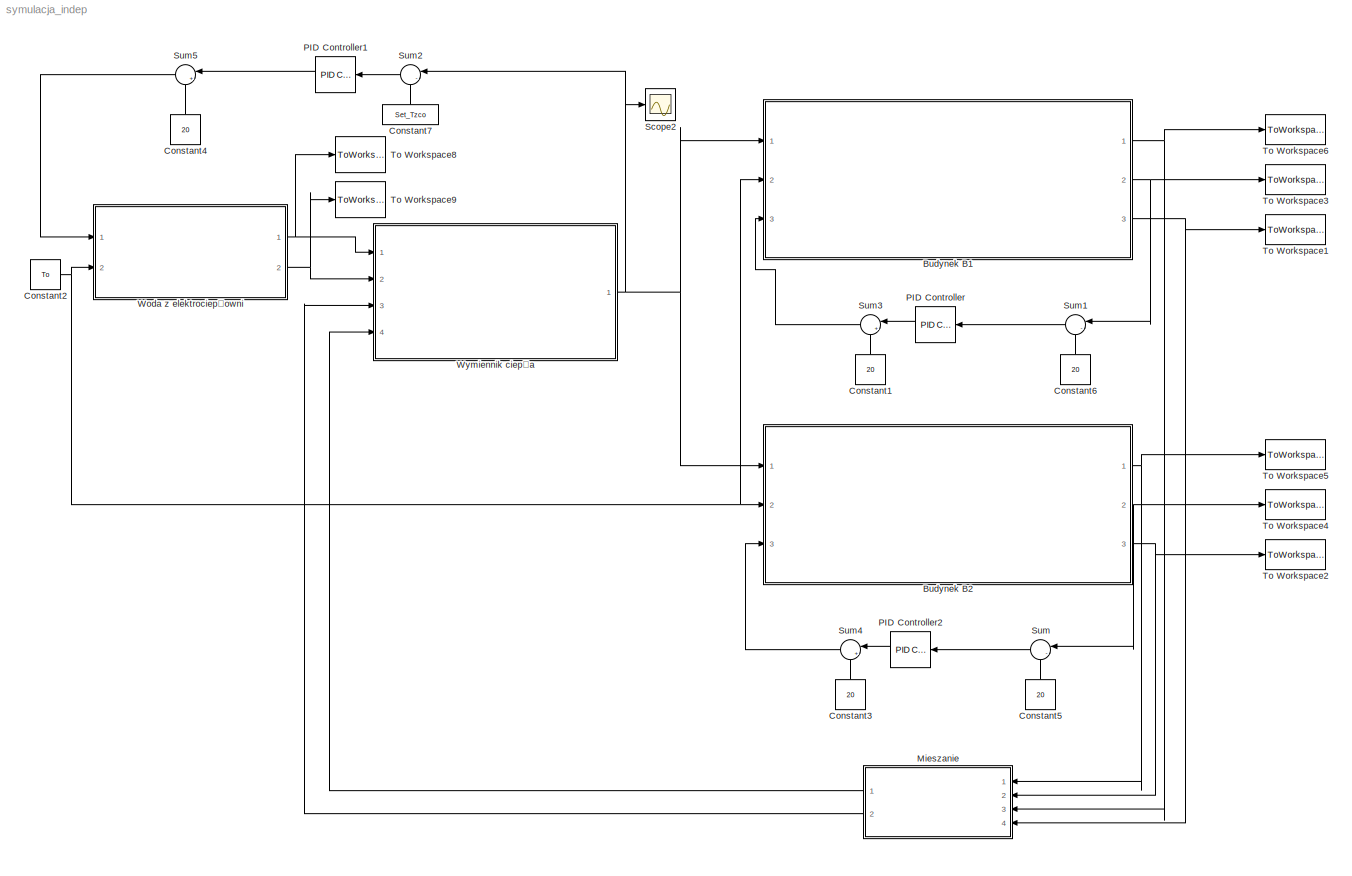
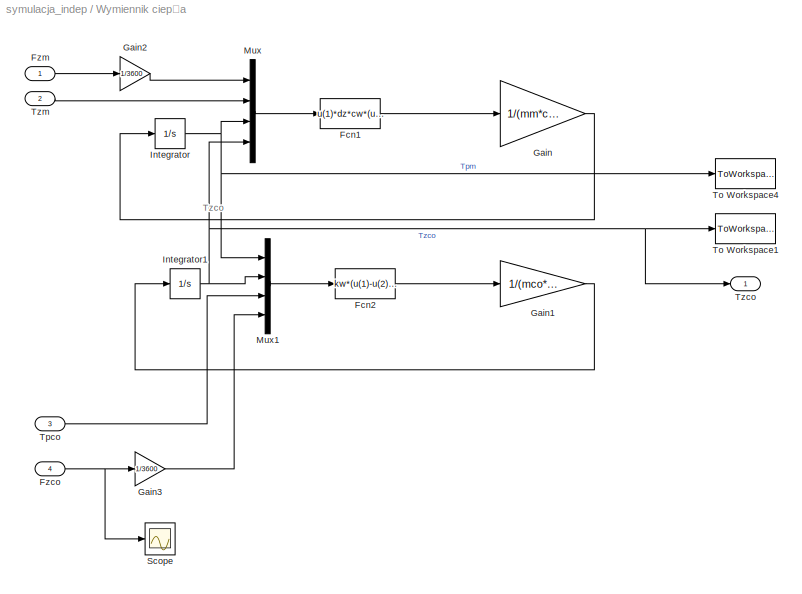
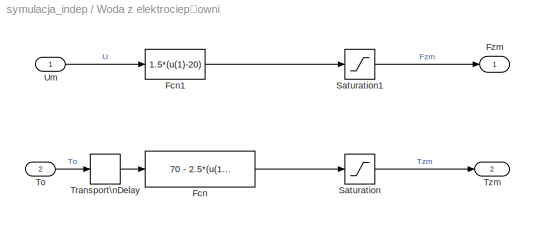
MODEL symulacja_indep
KIND model
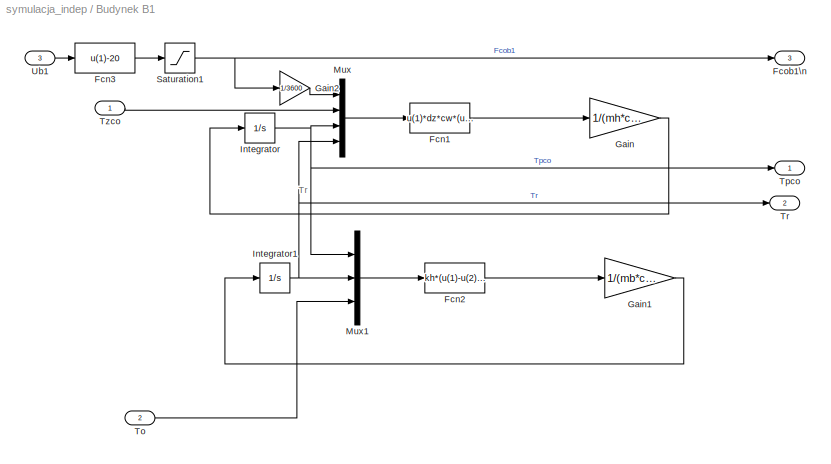
BLOCK [SubSystem] Budynek B1
  FunctionWithSeparateData = off
  MaskHideContents = off
  MinAlgLoopOccurrences = off
  Opaque = off
  Ports = [3, 3]
  PropExecContextOutsideSubsystem = off
  RTWSystemCode = Auto
  RequestExecContextInheritance = off
  SID = 30
  Variant = off
BLOCK [Fcn] Budynek B1/Fcn1
  Expr = u(1)*dz*cw*(u(2)-u(3))-kh*(u(3)-u(4))
  SID = 23
BLOCK [Fcn] Budynek B1/Fcn2
  Expr = kh*(u(1)-u(2)) - kext*(u(2)-u(3))
  SID = 25
BLOCK [Fcn] Budynek B1/Fcn3
  Expr = u(1)-20
  SID = 90
BLOCK [Outport] Budynek B1/Fcob1\n
  IconDisplay = Port number
  Port = 3
  SID = 186
BLOCK [Gain] Budynek B1/Gain
  Gain = 1/(mh*ch)
  OutDataTypeStr = Inherit: Inherit via internal rule
  ParamDataTypeStr = Inherit: Inherit via internal rule
  SID = 21
  SaturateOnIntegerOverflow = off
BLOCK [Gain] Budynek B1/Gain1
  Gain = 1/(mb*cb)
  OutDataTypeStr = Inherit: Inherit via internal rule
  ParamDataTypeStr = Inherit: Inherit via internal rule
  SID = 26
  SaturateOnIntegerOverflow = off
BLOCK [Gain] Budynek B1/Gain2
  Gain = 1/3600
  OutDataTypeStr = Inherit: Inherit via internal rule
  ParamDataTypeStr = Inherit: Inherit via internal rule
  SID = 253
  SaturateOnIntegerOverflow = off
BLOCK [Integrator] Budynek B1/Integrator
  InitialCondition = Tpco1_in
  Ports = [1, 1]
  SID = 19
BLOCK [Integrator] Budynek B1/Integrator1
  InitialCondition = Tr1_in
  Ports = [1, 1]
  SID = 27
BLOCK [Mux] Budynek B1/Mux
  DisplayOption = bar
  Ports = [4, 1]
  SID = 24
BLOCK [Mux] Budynek B1/Mux1
  DisplayOption = bar
  Inputs = 3
  Ports = [3, 1]
  SID = 28
BLOCK [Saturate] Budynek B1/Saturation1
  InputPortMap = u0
  LowerLimit = 0
  Ports = [1, 1]
  SID = 91
  UpperLimit = 40
BLOCK [Inport] Budynek B1/To
  IconDisplay = Port number
  Port = 2
  SID = 33
BLOCK [Outport] Budynek B1/Tpco
  IconDisplay = Port number
  SID = 34
BLOCK [Outport] Budynek B1/Tr
  IconDisplay = Port number
  Port = 2
  SID = 35
BLOCK [Inport] Budynek B1/Tzco
  IconDisplay = Port number
  SID = 32
BLOCK [Inport] Budynek B1/Ub1
  IconDisplay = Port number
  Port = 3
  SID = 94
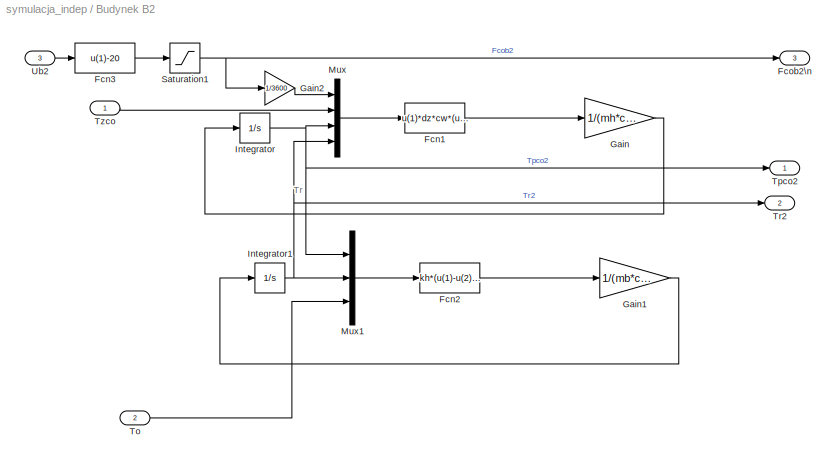
BLOCK [SubSystem] Budynek B2
  FunctionWithSeparateData = off
  MaskHideContents = off
  MinAlgLoopOccurrences = off
  Opaque = off
  Ports = [3, 3]
  PropExecContextOutsideSubsystem = off
  RTWSystemCode = Auto
  RequestExecContextInheritance = off
  SID = 58
  Variant = off
BLOCK [Fcn] Budynek B2/Fcn1
  Expr = u(1)*dz*cw*(u(2)-u(3))-kh*(u(3)-u(4))
  SID = 154
BLOCK [Fcn] Budynek B2/Fcn2
  Expr = kh*(u(1)-u(2)) - kext*(u(2)-u(3))
  SID = 155
BLOCK [Fcn] Budynek B2/Fcn3
  Expr = u(1)-20
  SID = 156
BLOCK [Outport] Budynek B2/Fcob2\n
  IconDisplay = Port number
  Port = 3
  SID = 187
BLOCK [Gain] Budynek B2/Gain
  Gain = 1/(mh*ch)
  OutDataTypeStr = Inherit: Inherit via internal rule
  ParamDataTypeStr = Inherit: Inherit via internal rule
  SID = 157
  SaturateOnIntegerOverflow = off
BLOCK [Gain] Budynek B2/Gain1
  Gain = 1/(mb*cb)
  OutDataTypeStr = Inherit: Inherit via internal rule
  ParamDataTypeStr = Inherit: Inherit via internal rule
  SID = 158
  SaturateOnIntegerOverflow = off
BLOCK [Gain] Budynek B2/Gain2
  Gain = 1/3600
  OutDataTypeStr = Inherit: Inherit via internal rule
  ParamDataTypeStr = Inherit: Inherit via internal rule
  SID = 254
  SaturateOnIntegerOverflow = off
BLOCK [Integrator] Budynek B2/Integrator
  InitialCondition = Tpco2_in
  Ports = [1, 1]
  SID = 159
BLOCK [Integrator] Budynek B2/Integrator1
  InitialCondition = Tr2_in
  Ports = [1, 1]
  SID = 160
BLOCK [Mux] Budynek B2/Mux
  DisplayOption = bar
  Ports = [4, 1]
  SID = 161
BLOCK [Mux] Budynek B2/Mux1
  DisplayOption = bar
  Inputs = 3
  Ports = [3, 1]
  SID = 162
BLOCK [Saturate] Budynek B2/Saturation1
  InputPortMap = u0
  LowerLimit = 0
  Ports = [1, 1]
  SID = 163
  UpperLimit = 40
BLOCK [Inport] Budynek B2/To
  IconDisplay = Port number
  Port = 2
  SID = 152
BLOCK [Outport] Budynek B2/Tpco2
  IconDisplay = Port number
  SID = 164
BLOCK [Outport] Budynek B2/Tr2
  IconDisplay = Port number
  Port = 2
  SID = 165
BLOCK [Inport] Budynek B2/Tzco
  IconDisplay = Port number
  SID = 151
BLOCK [Inport] Budynek B2/Ub2
  IconDisplay = Port number
  Port = 3
  SID = 153
BLOCK [Constant] Constant1
  SID = 260
  Value = 20
BLOCK [Constant] Constant2
  SID = 204
  Value = To
BLOCK [Constant] Constant3
  SID = 262
  Value = 20
BLOCK [Constant] Constant4
  SID = 264
  Value = 20
BLOCK [Constant] Constant5
  SID = 218
  Value = 20
BLOCK [Constant] Constant6
  SID = 219
  Value = 20
BLOCK [Constant] Constant7
  SID = 221
  Value = Set_Tzco
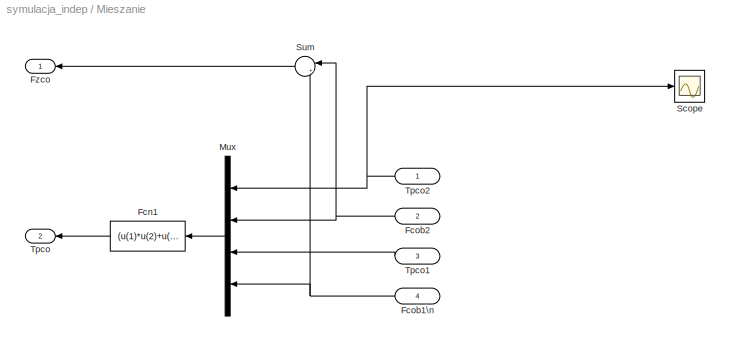
BLOCK [SubSystem] Mieszanie
  FunctionWithSeparateData = off
  MaskHideContents = off
  MinAlgLoopOccurrences = off
  Opaque = off
  Ports = [4, 2]
  PropExecContextOutsideSubsystem = off
  RTWSystemCode = Auto
  RequestExecContextInheritance = off
  SID = 192
  Variant = off
BLOCK [Fcn] Mieszanie/Fcn1
  Expr = (u(1)*u(2)+u(3)*u(4))/(u(1)+u(3))
  SID = 188
BLOCK [Inport] Mieszanie/Fcob1\n
  IconDisplay = Port number
  Port = 4
  SID = 200
BLOCK [Inport] Mieszanie/Fcob2
  IconDisplay = Port number
  Port = 2
  SID = 198
BLOCK [Outport] Mieszanie/Fzco
  IconDisplay = Port number
  SID = 208
BLOCK [Mux] Mieszanie/Mux
  DisplayOption = bar
  Ports = [4, 1]
  SID = 189
BLOCK [Scope] Mieszanie/Scope
  DataFormat = StructureWithTime
  Decimation = 1
  Grid = on
  LimitDataPoints = off
  MaxDataPoints = 5000
  Ports = [1]
  SID = 223
  SampleInput = off
  SampleTime = -1
  SaveName = ScopeData1
  SaveToWorkspace = off
  ShowLegends = off
  TickLabels = OneTimeTick
  TimeRange = auto
  YMax = 50.00000
  YMin = 30.00000
  ZoomMode = on
BLOCK [Sum] Mieszanie/Sum
  IconShape = round
  InputSameDT = off
  Inputs = |++
  OutDataTypeStr = Inherit: Inherit via internal rule
  Ports = [2, 1]
  SID = 207
  SaturateOnIntegerOverflow = off
BLOCK [Outport] Mieszanie/Tpco
  IconDisplay = Port number
  Port = 2
  SID = 197
BLOCK [Inport] Mieszanie/Tpco1
  IconDisplay = Port number
  Port = 3
  SID = 199
BLOCK [Inport] Mieszanie/Tpco2
  IconDisplay = Port number
  SID = 193
BLOCK [Reference] PID Controller  REF=simulink/Continuous/PID Controller
  AntiWindupMode = none
  Controller = PI
  ControllerParametersSource = internal
  D = 0
  DGainOutDataTypeStr = Inherit: Inherit via internal rule
  DOutDataTypeStr = Inherit: Inherit via internal rule
  DOutMax = []
  DOutMin = []
  DParamDataTypeStr = Inherit: Inherit via internal rule
  DParamMax = []
  DParamMin = []
  DProdOutDataTypeStr = Inherit: Inherit via internal rule
  DifferentiatorICPrevScaledInput = 0
  DifferentiatorOutDataTypeStr = Inherit: Inherit via internal rule
  DifferentiatorOutMax = []
  DifferentiatorOutMin = []
  ExternalReset = none
  FilterContinuousStateAttributes = ''
  FilterMethod = Forward Euler
  FilterOutDataTypeStr = Inherit: Inherit via internal rule
  FilterOutMax = []
  FilterOutMin = []
  FilterRTWStateStorageClass = Auto
  FilterStateMustResolveToSignalObject = off
  Form = Parallel
  I = 0.003
  IGainOutDataTypeStr = Inherit: Inherit via internal rule
  IOutDataTypeStr = Inherit: Inherit via internal rule
  IOutMax = []
  IOutMin = []
  IParamDataTypeStr = Inherit: Inherit via internal rule
  IParamMax = []
  IParamMin = []
  IProdOutDataTypeStr = Inherit: Inherit via internal rule
  IgnoreLimit = off
  InitialConditionForFilter = 0
  InitialConditionForIntegrator = 0
  InitialConditionSource = internal
  IntegratorContinuousStateAttributes = ''
  IntegratorMethod = Forward Euler
  IntegratorOutDataTypeStr = Inherit: Inherit via internal rule
  IntegratorOutMax = []
  IntegratorOutMin = []
  IntegratorRTWStateStorageClass = Auto
  IntegratorStateMustResolveToSignalObject = off
  Kb = 1
  KbOutDataTypeStr = Inherit: Inherit via internal rule
  KbOutMax = []
  KbOutMin = []
  KbParamDataTypeStr = Inherit: Inherit via internal rule
  KbParamMax = []
  KbParamMin = []
  Kt = 1
  KtOutDataTypeStr = Inherit: Inherit via internal rule
  KtOutMax = []
  KtOutMin = []
  KtParamDataTypeStr = Inherit: Inherit via internal rule
  KtParamMax = []
  KtParamMin = []
  LimitOutput = off
  LinearizeAsGain = off
  LockScale = off
  LowerSaturationLimit = -inf
  N = 1.51558352628904
  NGainOutDataTypeStr = Inherit: Inherit via internal rule
  NOutDataTypeStr = Inherit: Inherit via internal rule
  NOutMax = []
  NOutMin = []
  NParamDataTypeStr = Inherit: Inherit via internal rule
  NParamMax = []
  NParamMin = []
  NProdOutDataTypeStr = Inherit: Inherit via internal rule
  P = 5
  PGainOutDataTypeStr = Inherit: Inherit via internal rule
  POutDataTypeStr = Inherit: Inherit via internal rule
  POutMax = []
  POutMin = []
  PParamDataTypeStr = Inherit: Inherit via internal rule
  PParamMax = []
  PParamMin = []
  PProdOutDataTypeStr = Inherit: Inherit via internal rule
  Ports = [1, 1]
  RndMeth = Floor
  SID = 244
  SampleTime = -1
  SaturateOnIntegerOverflow = off
  SaturationOutDataTypeStr = Inherit: Same as input
  SaturationOutMax = []
  SaturationOutMin = []
  SourceBlock = simulink/Continuous/PID Controller
  SourceType = PID 1dof
  SumAccumDataTypeStr = Inherit: Inherit via internal rule
  SumDAccumDataTypeStr = Inherit: Inherit via internal rule
  SumDOutDataTypeStr = Inherit: Inherit via internal rule
  SumDOutMax = []
  SumDOutMin = []
  SumI1AccumDataTypeStr = Inherit: Inherit via internal rule
  SumI1OutDataTypeStr = Inherit: Inherit via internal rule
  SumI1OutMax = []
  SumI1OutMin = []
  SumI2AccumDataTypeStr = Inherit: Inherit via internal rule
  SumI2OutDataTypeStr = Inherit: Inherit via internal rule
  SumI2OutMax = []
  SumI2OutMin = []
  SumI3AccumDataTypeStr = Inherit: Inherit via internal rule
  SumI3OutDataTypeStr = Inherit: Inherit via internal rule
  SumI3OutMax = []
  SumI3OutMin = []
  SumOutDataTypeStr = Inherit: Inherit via internal rule
  SumOutMax = []
  SumOutMin = []
  TimeDomain = Continuous-time
  TrackingMode = off
  UpperSaturationLimit = inf
  UseFilter = on
  ZeroCross = on
BLOCK [Reference] PID Controller1  REF=simulink/Continuous/PID Controller
  AntiWindupMode = none
  Controller = PI
  ControllerParametersSource = internal
  D = 0
  DGainOutDataTypeStr = Inherit: Inherit via internal rule
  DOutDataTypeStr = Inherit: Inherit via internal rule
  DOutMax = []
  DOutMin = []
  DParamDataTypeStr = Inherit: Inherit via internal rule
  DParamMax = []
  DParamMin = []
  DProdOutDataTypeStr = Inherit: Inherit via internal rule
  DifferentiatorICPrevScaledInput = 0
  DifferentiatorOutDataTypeStr = Inherit: Inherit via internal rule
  DifferentiatorOutMax = []
  DifferentiatorOutMin = []
  ExternalReset = none
  FilterContinuousStateAttributes = ''
  FilterMethod = Forward Euler
  FilterOutDataTypeStr = Inherit: Inherit via internal rule
  FilterOutMax = []
  FilterOutMin = []
  FilterRTWStateStorageClass = Auto
  FilterStateMustResolveToSignalObject = off
  Form = Parallel
  I = 0.04
  IGainOutDataTypeStr = Inherit: Inherit via internal rule
  IOutDataTypeStr = Inherit: Inherit via internal rule
  IOutMax = []
  IOutMin = []
  IParamDataTypeStr = Inherit: Inherit via internal rule
  IParamMax = []
  IParamMin = []
  IProdOutDataTypeStr = Inherit: Inherit via internal rule
  IgnoreLimit = off
  InitialConditionForFilter = 0
  InitialConditionForIntegrator = 0
  InitialConditionSource = internal
  IntegratorContinuousStateAttributes = ''
  IntegratorMethod = Forward Euler
  IntegratorOutDataTypeStr = Inherit: Inherit via internal rule
  IntegratorOutMax = []
  IntegratorOutMin = []
  IntegratorRTWStateStorageClass = Auto
  IntegratorStateMustResolveToSignalObject = off
  Kb = 1
  KbOutDataTypeStr = Inherit: Inherit via internal rule
  KbOutMax = []
  KbOutMin = []
  KbParamDataTypeStr = Inherit: Inherit via internal rule
  KbParamMax = []
  KbParamMin = []
  Kt = 1
  KtOutDataTypeStr = Inherit: Inherit via internal rule
  KtOutMax = []
  KtOutMin = []
  KtParamDataTypeStr = Inherit: Inherit via internal rule
  KtParamMax = []
  KtParamMin = []
  LimitOutput = off
  LinearizeAsGain = off
  LockScale = off
  LowerSaturationLimit = -inf
  N = 100
  NGainOutDataTypeStr = Inherit: Inherit via internal rule
  NOutDataTypeStr = Inherit: Inherit via internal rule
  NOutMax = []
  NOutMin = []
  NParamDataTypeStr = Inherit: Inherit via internal rule
  NParamMax = []
  NParamMin = []
  NProdOutDataTypeStr = Inherit: Inherit via internal rule
  P = 5.5
  PGainOutDataTypeStr = Inherit: Inherit via internal rule
  POutDataTypeStr = Inherit: Inherit via internal rule
  POutMax = []
  POutMin = []
  PParamDataTypeStr = Inherit: Inherit via internal rule
  PParamMax = []
  PParamMin = []
  PProdOutDataTypeStr = Inherit: Inherit via internal rule
  Ports = [1, 1]
  RndMeth = Floor
  SID = 247
  SampleTime = -1
  SaturateOnIntegerOverflow = off
  SaturationOutDataTypeStr = Inherit: Same as input
  SaturationOutMax = []
  SaturationOutMin = []
  SourceBlock = simulink/Continuous/PID Controller
  SourceType = PID 1dof
  SumAccumDataTypeStr = Inherit: Inherit via internal rule
  SumDAccumDataTypeStr = Inherit: Inherit via internal rule
  SumDOutDataTypeStr = Inherit: Inherit via internal rule
  SumDOutMax = []
  SumDOutMin = []
  SumI1AccumDataTypeStr = Inherit: Inherit via internal rule
  SumI1OutDataTypeStr = Inherit: Inherit via internal rule
  SumI1OutMax = []
  SumI1OutMin = []
  SumI2AccumDataTypeStr = Inherit: Inherit via internal rule
  SumI2OutDataTypeStr = Inherit: Inherit via internal rule
  SumI2OutMax = []
  SumI2OutMin = []
  SumI3AccumDataTypeStr = Inherit: Inherit via internal rule
  SumI3OutDataTypeStr = Inherit: Inherit via internal rule
  SumI3OutMax = []
  SumI3OutMin = []
  SumOutDataTypeStr = Inherit: Inherit via internal rule
  SumOutMax = []
  SumOutMin = []
  TimeDomain = Continuous-time
  TrackingMode = off
  UpperSaturationLimit = inf
  UseFilter = on
  ZeroCross = on
BLOCK [Reference] PID Controller2  REF=simulink/Continuous/PID Controller
  AntiWindupMode = none
  Controller = PI
  ControllerParametersSource = internal
  D = 4.73526330214478e+15
  DGainOutDataTypeStr = Inherit: Inherit via internal rule
  DOutDataTypeStr = Inherit: Inherit via internal rule
  DOutMax = []
  DOutMin = []
  DParamDataTypeStr = Inherit: Inherit via internal rule
  DParamMax = []
  DParamMin = []
  DProdOutDataTypeStr = Inherit: Inherit via internal rule
  DifferentiatorICPrevScaledInput = 0
  DifferentiatorOutDataTypeStr = Inherit: Inherit via internal rule
  DifferentiatorOutMax = []
  DifferentiatorOutMin = []
  ExternalReset = none
  FilterContinuousStateAttributes = ''
  FilterMethod = Forward Euler
  FilterOutDataTypeStr = Inherit: Inherit via internal rule
  FilterOutMax = []
  FilterOutMin = []
  FilterRTWStateStorageClass = Auto
  FilterStateMustResolveToSignalObject = off
  Form = Parallel
  I = 0.003
  IGainOutDataTypeStr = Inherit: Inherit via internal rule
  IOutDataTypeStr = Inherit: Inherit via internal rule
  IOutMax = []
  IOutMin = []
  IParamDataTypeStr = Inherit: Inherit via internal rule
  IParamMax = []
  IParamMin = []
  IProdOutDataTypeStr = Inherit: Inherit via internal rule
  IgnoreLimit = off
  InitialConditionForFilter = 0
  InitialConditionForIntegrator = 0
  InitialConditionSource = internal
  IntegratorContinuousStateAttributes = ''
  IntegratorMethod = Forward Euler
  IntegratorOutDataTypeStr = Inherit: Inherit via internal rule
  IntegratorOutMax = []
  IntegratorOutMin = []
  IntegratorRTWStateStorageClass = Auto
  IntegratorStateMustResolveToSignalObject = off
  Kb = 1
  KbOutDataTypeStr = Inherit: Inherit via internal rule
  KbOutMax = []
  KbOutMin = []
  KbParamDataTypeStr = Inherit: Inherit via internal rule
  KbParamMax = []
  KbParamMin = []
  Kt = 1
  KtOutDataTypeStr = Inherit: Inherit via internal rule
  KtOutMax = []
  KtOutMin = []
  KtParamDataTypeStr = Inherit: Inherit via internal rule
  KtParamMax = []
  KtParamMin = []
  LimitOutput = off
  LinearizeAsGain = off
  LockScale = off
  LowerSaturationLimit = -inf
  N = 0.256886063565223
  NGainOutDataTypeStr = Inherit: Inherit via internal rule
  NOutDataTypeStr = Inherit: Inherit via internal rule
  NOutMax = []
  NOutMin = []
  NParamDataTypeStr = Inherit: Inherit via internal rule
  NParamMax = []
  NParamMin = []
  NProdOutDataTypeStr = Inherit: Inherit via internal rule
  P = 5
  PGainOutDataTypeStr = Inherit: Inherit via internal rule
  POutDataTypeStr = Inherit: Inherit via internal rule
  POutMax = []
  POutMin = []
  PParamDataTypeStr = Inherit: Inherit via internal rule
  PParamMax = []
  PParamMin = []
  PProdOutDataTypeStr = Inherit: Inherit via internal rule
  Ports = [1, 1]
  RndMeth = Floor
  SID = 249
  SampleTime = -1
  SaturateOnIntegerOverflow = off
  SaturationOutDataTypeStr = Inherit: Same as input
  SaturationOutMax = []
  SaturationOutMin = []
  SourceBlock = simulink/Continuous/PID Controller
  SourceType = PID 1dof
  SumAccumDataTypeStr = Inherit: Inherit via internal rule
  SumDAccumDataTypeStr = Inherit: Inherit via internal rule
  SumDOutDataTypeStr = Inherit: Inherit via internal rule
  SumDOutMax = []
  SumDOutMin = []
  SumI1AccumDataTypeStr = Inherit: Inherit via internal rule
  SumI1OutDataTypeStr = Inherit: Inherit via internal rule
  SumI1OutMax = []
  SumI1OutMin = []
  SumI2AccumDataTypeStr = Inherit: Inherit via internal rule
  SumI2OutDataTypeStr = Inherit: Inherit via internal rule
  SumI2OutMax = []
  SumI2OutMin = []
  SumI3AccumDataTypeStr = Inherit: Inherit via internal rule
  SumI3OutDataTypeStr = Inherit: Inherit via internal rule
  SumI3OutMax = []
  SumI3OutMin = []
  SumOutDataTypeStr = Inherit: Inherit via internal rule
  SumOutMax = []
  SumOutMin = []
  TimeDomain = Continuous-time
  TrackingMode = off
  UpperSaturationLimit = inf
  UseFilter = on
  ZeroCross = on
BLOCK [Scope] Scope2
  DataFormat = StructureWithTime
  Decimation = 1
  Grid = on
  LimitDataPoints = off
  MaxDataPoints = 5000
  Ports = [1]
  SID = 279
  SampleInput = off
  SampleTime = -1
  SaveName = ScopeData4
  SaveToWorkspace = off
  ShowLegends = off
  TickLabels = OneTimeTick
  TimeRange = auto
  YMax = 89.4066
  YMin = -4.37851
  ZoomMode = on
BLOCK [Sum] Sum
  IconShape = round
  InputSameDT = off
  Inputs = |-+
  OutDataTypeStr = Inherit: Inherit via internal rule
  Ports = [2, 1]
  SID = 217
  SaturateOnIntegerOverflow = off
BLOCK [Sum] Sum1
  IconShape = round
  InputSameDT = off
  Inputs = |-+
  OutDataTypeStr = Inherit: Inherit via internal rule
  Ports = [2, 1]
  SID = 220
  SaturateOnIntegerOverflow = off
BLOCK [Sum] Sum2
  IconShape = round
  InputSameDT = off
  Inputs = |-+
  OutDataTypeStr = Inherit: Inherit via internal rule
  Ports = [2, 1]
  SID = 222
  SaturateOnIntegerOverflow = off
BLOCK [Sum] Sum3
  IconShape = round
  InputSameDT = off
  Inputs = |++
  OutDataTypeStr = Inherit: Inherit via internal rule
  Ports = [2, 1]
  SID = 261
  SaturateOnIntegerOverflow = off
BLOCK [Sum] Sum4
  IconShape = round
  InputSameDT = off
  Inputs = |++
  OutDataTypeStr = Inherit: Inherit via internal rule
  Ports = [2, 1]
  SID = 263
  SaturateOnIntegerOverflow = off
BLOCK [Sum] Sum5
  IconShape = round
  InputSameDT = off
  Inputs = |++
  OutDataTypeStr = Inherit: Inherit via internal rule
  Ports = [2, 1]
  SID = 265
  SaturateOnIntegerOverflow = off
BLOCK [ToWorkspace] To Workspace1
  FixptAsFi = on
  MaxDataPoints = inf
  Ports = [1]
  SID = 269
  SampleTime = -1
  VariableName = Fcob1
BLOCK [ToWorkspace] To Workspace2
  FixptAsFi = on
  MaxDataPoints = inf
  Ports = [1]
  SID = 270
  SampleTime = -1
  VariableName = Fcob2
BLOCK [ToWorkspace] To Workspace3
  FixptAsFi = on
  MaxDataPoints = inf
  Ports = [1]
  SID = 143
  SampleTime = -1
  VariableName = Tr1
BLOCK [ToWorkspace] To Workspace4
  FixptAsFi = on
  MaxDataPoints = inf
  Ports = [1]
  SID = 144
  SampleTime = -1
  VariableName = Tr2
BLOCK [ToWorkspace] To Workspace5
  FixptAsFi = on
  MaxDataPoints = inf
  Ports = [1]
  SID = 145
  SampleTime = -1
  VariableName = Tpco2
BLOCK [ToWorkspace] To Workspace6
  FixptAsFi = on
  MaxDataPoints = inf
  Ports = [1]
  SID = 146
  SampleTime = -1
  VariableName = Tpco1
BLOCK [ToWorkspace] To Workspace8
  FixptAsFi = on
  MaxDataPoints = inf
  Ports = [1]
  SID = 272
  SampleTime = -1
  VariableName = Fzm
BLOCK [ToWorkspace] To Workspace9
  FixptAsFi = on
  MaxDataPoints = inf
  Ports = [1]
  SID = 273
  SampleTime = -1
  VariableName = Tzm
BLOCK [SubSystem] Woda z elektrociep³owni
  FunctionWithSeparateData = off
  MaskHideContents = off
  MinAlgLoopOccurrences = off
  Opaque = off
  Ports = [2, 2]
  PropExecContextOutsideSubsystem = off
  RTWSystemCode = Auto
  RequestExecContextInheritance = off
  SID = 9
  Variant = off
BLOCK [Fcn] Woda z elektrociep³owni/Fcn
  Expr = 70 - 2.5*(u(1) - 6)
  SID = 2
BLOCK [Fcn] Woda z elektrociep³owni/Fcn1
  Expr = 1.5*(u(1)-20)
  SID = 3
BLOCK [Outport] Woda z elektrociep³owni/Fzm
  IconDisplay = Port number
  SID = 12
BLOCK [Saturate] Woda z elektrociep³owni/Saturation
  InputPortMap = u0
  LowerLimit = 70
  Ports = [1, 1]
  SID = 4
  UpperLimit = 135
BLOCK [Saturate] Woda z elektrociep³owni/Saturation1
  InputPortMap = u0
  LowerLimit = 0
  Ports = [1, 1]
  SID = 5
  UpperLimit = 80
BLOCK [Inport] Woda z elektrociep³owni/To
  IconDisplay = Port number
  Port = 2
  SID = 11
BLOCK [TransportDelay] Woda z elektrociep³owni/Transport\nDelay
  DelayTime = 8
  InitialOutput = To
  Ports = [1, 1]
  SID = 18
BLOCK [Outport] Woda z elektrociep³owni/Tzm
  IconDisplay = Port number
  Port = 2
  SID = 13
BLOCK [Inport] Woda z elektrociep³owni/Um
  IconDisplay = Port number
  SID = 10
BLOCK [SubSystem] Wymiennik ciep³a
  FunctionWithSeparateData = off
  MaskHideContents = off
  MinAlgLoopOccurrences = off
  Opaque = off
  Ports = [4, 1]
  PropExecContextOutsideSubsystem = off
  RTWSystemCode = Auto
  RequestExecContextInheritance = off
  SID = 177
  Variant = off
BLOCK [Fcn] Wymiennik ciep³a/Fcn1
  Expr = u(1)*dz*cw*(u(2)-u(3))-kw*(u(3)-u(4))
  SID = 167
BLOCK [Fcn] Wymiennik ciep³a/Fcn2
  Expr = kw*(u(1)-u(2))-(u(4)*dz*cw*(u(2)-u(3)))
  SID = 168
BLOCK [Inport] Wymiennik ciep³a/Fzco
  IconDisplay = Port number
  Port = 4
  SID = 201
BLOCK [Inport] Wymiennik ciep³a/Fzm
  IconDisplay = Port number
  SID = 185
BLOCK [Gain] Wymiennik ciep³a/Gain
  Gain = 1/(mm*cwym)
  OutDataTypeStr = Inherit: Inherit via internal rule
  ParamDataTypeStr = Inherit: Inherit via internal rule
  SID = 169
  SaturateOnIntegerOverflow = off
BLOCK [Gain] Wymiennik ciep³a/Gain1
  Gain = 1/(mco*cwym)
  OutDataTypeStr = Inherit: Inherit via internal rule
  ParamDataTypeStr = Inherit: Inherit via internal rule
  SID = 170
  SaturateOnIntegerOverflow = off
BLOCK [Gain] Wymiennik ciep³a/Gain2
  Gain = 1/3600
  OutDataTypeStr = Inherit: Inherit via internal rule
  ParamDataTypeStr = Inherit: Inherit via internal rule
  SID = 255
  SaturateOnIntegerOverflow = off
BLOCK [Gain] Wymiennik ciep³a/Gain3
  Gain = 1/3600
  OutDataTypeStr = Inherit: Inherit via internal rule
  ParamDataTypeStr = Inherit: Inherit via internal rule
  SID = 256
  SaturateOnIntegerOverflow = off
BLOCK [Integrator] Wymiennik ciep³a/Integrator
  InitialCondition = Tpm_in
  Ports = [1, 1]
  SID = 171
BLOCK [Integrator] Wymiennik ciep³a/Integrator1
  InitialCondition = Tzco_in
  Ports = [1, 1]
  SID = 172
BLOCK [Mux] Wymiennik ciep³a/Mux
  DisplayOption = bar
  Ports = [4, 1]
  SID = 173
BLOCK [Mux] Wymiennik ciep³a/Mux1
  DisplayOption = bar
  Ports = [4, 1]
  SID = 174
BLOCK [Scope] Wymiennik ciep³a/Scope
  DataFormat = StructureWithTime
  Decimation = 1
  Grid = on
  LimitDataPoints = on
  MaxDataPoints = 50000
  Ports = [1]
  SID = 241
  SampleInput = off
  SampleTime = -1
  SaveName = ScopeData3
  SaveToWorkspace = off
  ShowLegends = off
  TickLabels = OneTimeTick
  TimeRange = auto
  YMax = 90.00000
  YMin = 70.00000
  ZoomMode = on
BLOCK [ToWorkspace] Wymiennik ciep³a/To Workspace1
  FixptAsFi = on
  MaxDataPoints = inf
  Ports = [1]
  SID = 184
  SampleTime = -1
  VariableName = Tzco
BLOCK [ToWorkspace] Wymiennik ciep³a/To Workspace4
  FixptAsFi = on
  MaxDataPoints = inf
  Ports = [1]
  SID = 183
  SampleTime = -1
  VariableName = Tpm
BLOCK [Inport] Wymiennik ciep³a/Tpco
  IconDisplay = Port number
  Port = 3
  SID = 180
BLOCK [Outport] Wymiennik ciep³a/Tzco
  IconDisplay = Port number
  SID = 182
BLOCK [Inport] Wymiennik ciep³a/Tzm
  IconDisplay = Port number
  Port = 2
  SID = 179
ANNOTATION Budynek B1: Tr
ANNOTATION Budynek B2: Tr
ANNOTATION Wymiennik ciep³a: Tzco
LINE Budynek B1/Fcn1:1 -> Budynek B1/Gain:1
LINE Budynek B1/Fcn2:1 -> Budynek B1/Gain1:1
LINE Budynek B1/Fcn3:1 -> Budynek B1/Saturation1:1
LINE Budynek B1/Gain1:1 -> Budynek B1/Integrator1:1
LINE Budynek B1/Gain2:1 -> Budynek B1/Mux:1
LINE Budynek B1/Gain:1 -> Budynek B1/Integrator:1
NET Budynek B1/Integrator1:1 -> Budynek B1/Mux1:2, Budynek B1/Mux:4, Budynek B1/Tr:1
NET Budynek B1/Integrator:1 -> Budynek B1/Mux1:1, Budynek B1/Mux:3, Budynek B1/Tpco:1
LINE Budynek B1/Mux1:1 -> Budynek B1/Fcn2:1
LINE Budynek B1/Mux:1 -> Budynek B1/Fcn1:1
NET Budynek B1/Saturation1:1 -> Budynek B1/Fcob1\n:1, Budynek B1/Gain2:1
LINE Budynek B1/To:1 -> Budynek B1/Mux1:3
LINE Budynek B1/Tzco:1 -> Budynek B1/Mux:2
LINE Budynek B1/Ub1:1 -> Budynek B1/Fcn3:1
NET Budynek B1:1 -> Mieszanie:3, To Workspace6:1
NET Budynek B1:2 -> Sum1:1, To Workspace3:1
NET Budynek B1:3 -> Mieszanie:4, To Workspace1:1
LINE Budynek B2/Fcn1:1 -> Budynek B2/Gain:1
LINE Budynek B2/Fcn2:1 -> Budynek B2/Gain1:1
LINE Budynek B2/Fcn3:1 -> Budynek B2/Saturation1:1
LINE Budynek B2/Gain1:1 -> Budynek B2/Integrator1:1
LINE Budynek B2/Gain2:1 -> Budynek B2/Mux:1
LINE Budynek B2/Gain:1 -> Budynek B2/Integrator:1
NET Budynek B2/Integrator1:1 -> Budynek B2/Mux1:2, Budynek B2/Mux:4, Budynek B2/Tr2:1
NET Budynek B2/Integrator:1 -> Budynek B2/Mux1:1, Budynek B2/Mux:3, Budynek B2/Tpco2:1
LINE Budynek B2/Mux1:1 -> Budynek B2/Fcn2:1
LINE Budynek B2/Mux:1 -> Budynek B2/Fcn1:1
NET Budynek B2/Saturation1:1 -> Budynek B2/Fcob2\n:1, Budynek B2/Gain2:1
LINE Budynek B2/To:1 -> Budynek B2/Mux1:3
LINE Budynek B2/Tzco:1 -> Budynek B2/Mux:2
LINE Budynek B2/Ub2:1 -> Budynek B2/Fcn3:1
NET Budynek B2:1 -> Mieszanie:1, To Workspace5:1
NET Budynek B2:2 -> Sum:1, To Workspace4:1
NET Budynek B2:3 -> Mieszanie:2, To Workspace2:1
LINE Constant1:1 -> Sum3:2
NET Constant2:1 -> Budynek B1:2, Budynek B2:2, Woda z elektrociep³owni:2
LINE Constant3:1 -> Sum4:2
LINE Constant4:1 -> Sum5:2
LINE Constant5:1 -> Sum:2
LINE Constant6:1 -> Sum1:2
LINE Constant7:1 -> Sum2:2
LINE Mieszanie/Fcn1:1 -> Mieszanie/Tpco:1
NET Mieszanie/Fcob1\n:1 -> Mieszanie/Mux:4, Mieszanie/Sum:2
NET Mieszanie/Fcob2:1 -> Mieszanie/Mux:2, Mieszanie/Sum:1
LINE Mieszanie/Mux:1 -> Mieszanie/Fcn1:1
LINE Mieszanie/Sum:1 -> Mieszanie/Fzco:1
LINE Mieszanie/Tpco1:1 -> Mieszanie/Mux:3
NET Mieszanie/Tpco2:1 -> Mieszanie/Mux:1, Mieszanie/Scope:1
LINE Mieszanie:1 -> Wymiennik ciep³a:4
LINE Mieszanie:2 -> Wymiennik ciep³a:3
LINE PID Controller1:1 -> Sum5:1
LINE PID Controller2:1 -> Sum4:1
LINE PID Controller:1 -> Sum3:1
LINE Sum1:1 -> PID Controller:1
LINE Sum2:1 -> PID Controller1:1
LINE Sum3:1 -> Budynek B1:3
LINE Sum4:1 -> Budynek B2:3
LINE Sum5:1 -> Woda z elektrociep³owni:1
LINE Sum:1 -> PID Controller2:1
LINE Woda z elektrociep³owni/Fcn1:1 -> Woda z elektrociep³owni/Saturation1:1
LINE Woda z elektrociep³owni/Fcn:1 -> Woda z elektrociep³owni/Saturation:1
LINE Woda z elektrociep³owni/Saturation1:1 -> Woda z elektrociep³owni/Fzm:1
LINE Woda z elektrociep³owni/Saturation:1 -> Woda z elektrociep³owni/Tzm:1
LINE Woda z elektrociep³owni/To:1 -> Woda z elektrociep³owni/Transport\nDelay:1
LINE Woda z elektrociep³owni/Transport\nDelay:1 -> Woda z elektrociep³owni/Fcn:1
LINE Woda z elektrociep³owni/Um:1 -> Woda z elektrociep³owni/Fcn1:1
NET Woda z elektrociep³owni:1 -> To Workspace8:1, Wymiennik ciep³a:1
NET Woda z elektrociep³owni:2 -> To Workspace9:1, Wymiennik ciep³a:2
LINE Wymiennik ciep³a/Fcn1:1 -> Wymiennik ciep³a/Gain:1
LINE Wymiennik ciep³a/Fcn2:1 -> Wymiennik ciep³a/Gain1:1
NET Wymiennik ciep³a/Fzco:1 -> Wymiennik ciep³a/Gain3:1, Wymiennik ciep³a/Scope:1
LINE Wymiennik ciep³a/Fzm:1 -> Wymiennik ciep³a/Gain2:1
LINE Wymiennik ciep³a/Gain1:1 -> Wymiennik ciep³a/Integrator1:1
LINE Wymiennik ciep³a/Gain2:1 -> Wymiennik ciep³a/Mux:1
LINE Wymiennik ciep³a/Gain3:1 -> Wymiennik ciep³a/Mux1:4
LINE Wymiennik ciep³a/Gain:1 -> Wymiennik ciep³a/Integrator:1
NET Wymiennik ciep³a/Integrator1:1 -> Wymiennik ciep³a/Mux1:2, Wymiennik ciep³a/Mux:4, Wymiennik ciep³a/To Workspace1:1, Wymiennik ciep³a/Tzco:1
NET Wymiennik ciep³a/Integrator:1 -> Wymiennik ciep³a/Mux1:1, Wymiennik ciep³a/Mux:3, Wymiennik ciep³a/To Workspace4:1
LINE Wymiennik ciep³a/Mux1:1 -> Wymiennik ciep³a/Fcn2:1
LINE Wymiennik ciep³a/Mux:1 -> Wymiennik ciep³a/Fcn1:1
LINE Wymiennik ciep³a/Tpco:1 -> Wymiennik ciep³a/Mux1:3
LINE Wymiennik ciep³a/Tzm:1 -> Wymiennik ciep³a/Mux:2
NET Wymiennik ciep³a:1 -> Budynek B1:1, Budynek B2:1, Scope2:1, Sum2:1
note: NET lines group one-source signal fan-out (src -> all destinations, sorted); 1:1 wires keep LINE
